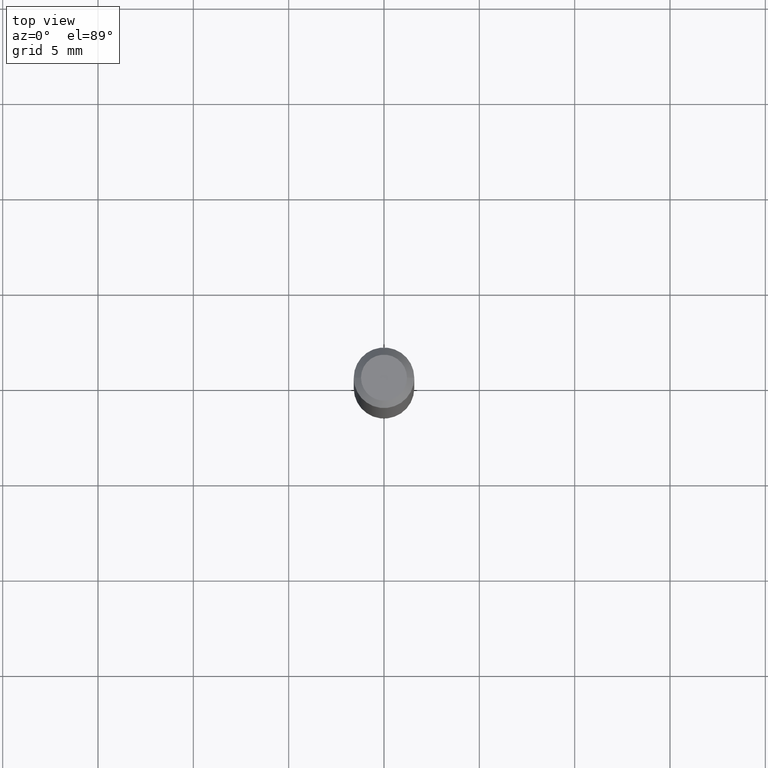
[diagram: clean part render]
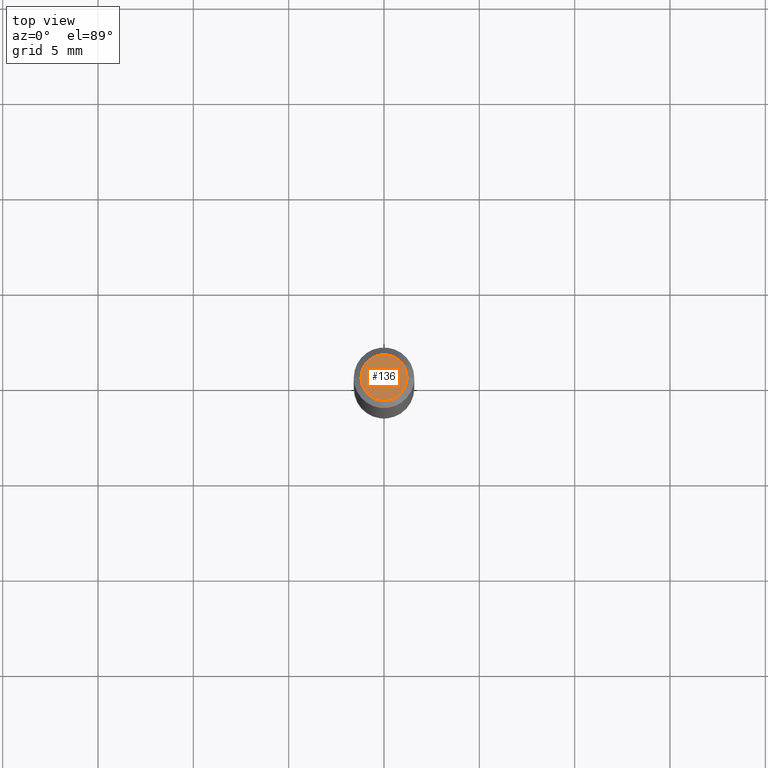
[diagram: same view with one face highlighted and labeled with its STEP entity id]
A machine part, top view. The second image highlights one B-rep face of the part: STEP entity #136.
In plain terms, the highlighted planar face has unit normal (0, -0, -1).
Its self-contained STEP definition (entity closure, byte-faithful):
#5 = ORIENTED_EDGE ( 'NONE', *, *, #69, .T. ) ;
#23 = EDGE_CURVE ( 'NONE', #251, #158, #70, .T. ) ;
#38 = DIRECTION ( 'NONE',  ( 1.000000000000000000, -6.982962677686267499E-15, 5.108144071313017768E-29 ) ) ;
#69 = EDGE_CURVE ( 'NONE', #158, #251, #223, .T. ) ;
#70 = CIRCLE ( 'NONE', #160, 0.04749999999999999362 ) ;
#82 = PLANE ( 'NONE',  #289 ) ;
#99 = CARTESIAN_POINT ( 'NONE',  ( 0.04749999999999999362, -4.035134999187603275E-16, -1.404502872476248897E-15 ) ) ;
#109 = CARTESIAN_POINT ( 'NONE',  ( 3.434667962838094334E-44, -4.903795569602426839E-30, -1.404502872476251461E-15 ) ) ;
#115 = FACE_OUTER_BOUND ( 'NONE', #358, .T. ) ;
#136 = ADVANCED_FACE ( 'NONE', ( #115 ), #82, .F. ) ;
#158 = VERTEX_POINT ( 'NONE', #228 ) ;
#160 = AXIS2_PLACEMENT_3D ( 'NONE', #109, #431, #38 ) ;
#221 = DIRECTION ( 'NONE',  ( -1.000000000000000000, 6.982962677686265922E-15, -4.876176775795935793E-29 ) ) ;
#223 = CIRCLE ( 'NONE', #294, 0.04749999999999999362 ) ;
#228 = CARTESIAN_POINT ( 'NONE',  ( -0.04749999999999999362, 3.578768372314186347E-16, -1.404502872476254025E-15 ) ) ;
#251 = VERTEX_POINT ( 'NONE', #99 ) ;
#274 = CARTESIAN_POINT ( 'NONE',  ( 3.434667962838094334E-44, -4.903795569602426839E-30, -1.404502872476251461E-15 ) ) ;
#289 = AXIS2_PLACEMENT_3D ( 'NONE', #291, #402, #221 ) ;
#291 = CARTESIAN_POINT ( 'NONE',  ( 3.316907271900976096E-16, 0.04749999999999999362, -8.680967998331751761E-16 ) ) ;
#294 = AXIS2_PLACEMENT_3D ( 'NONE', #274, #350, #423 ) ;
#350 = DIRECTION ( 'NONE',  ( -2.445468806185136597E-29, 3.491481338843145583E-15, 1.000000000000000000 ) ) ;
#358 = EDGE_LOOP ( 'NONE', ( #5, #372 ) ) ;
#372 = ORIENTED_EDGE ( 'NONE', *, *, #23, .T. ) ;
#402 = DIRECTION ( 'NONE',  ( 2.438088387897960049E-29, -3.491481338843145188E-15, -1.000000000000000000 ) ) ;
#423 = DIRECTION ( 'NONE',  ( 1.000000000000000000, -6.982962677686267499E-15, 5.108144071313017768E-29 ) ) ;
#431 = DIRECTION ( 'NONE',  ( -2.445468806185136597E-29, 3.491481338843145583E-15, 1.000000000000000000 ) ) ;